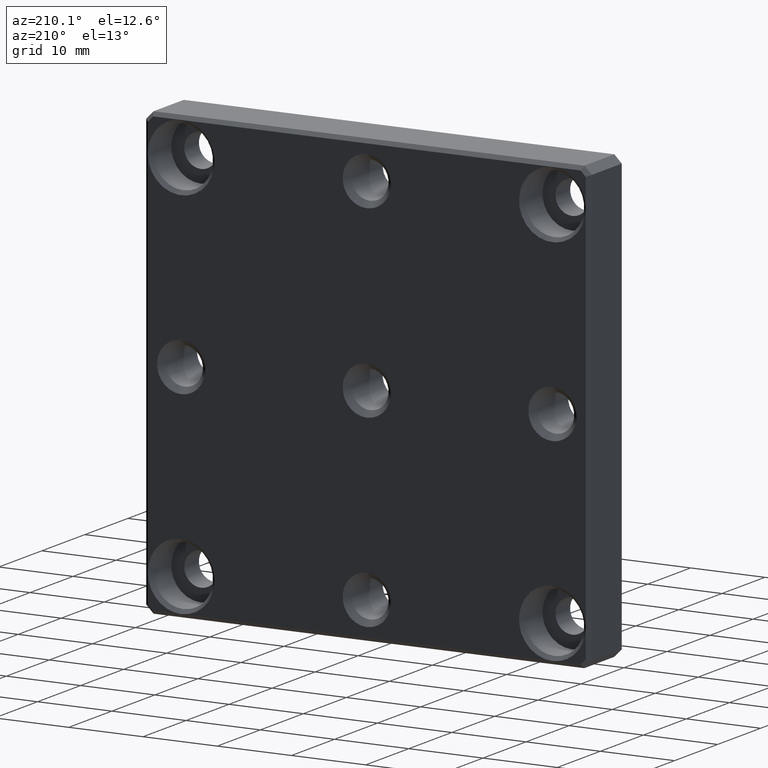
[diagram: clean part render]
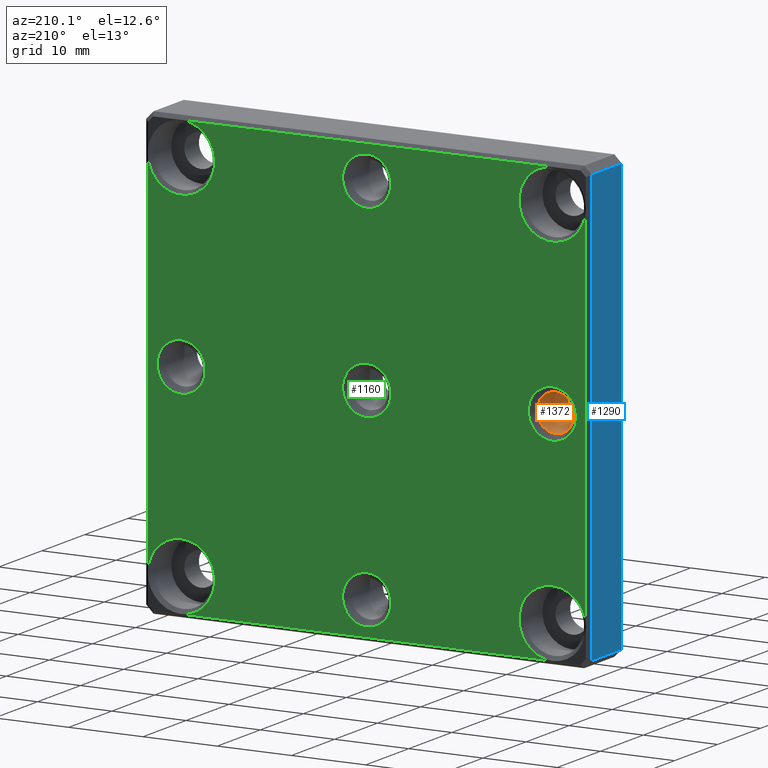
[diagram: same view with three faces highlighted in distinct colors, each labeled with its STEP entity id]
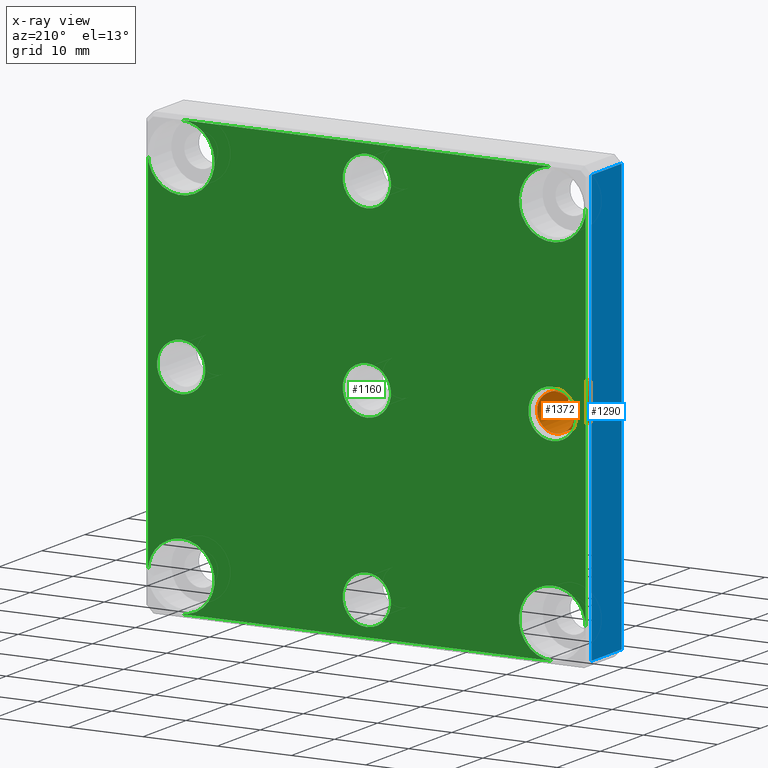
[diagram: x-ray of the same camera — body ghosted, the three highlighted faces saturated]
A machine part, auxiliary view with three faces highlighted in distinct colors.
The next image is the same camera in x-ray (body ghosted, the three faces saturated) — at least one of them is partly hidden behind the body in this view.
Their STEP definitions:

[orange] entity #1372 — the highlighted cylindrical surface (bore or boss wall) has radius 2.5 mm, axis along (-0, 1, -0).
#68 = EDGE_CURVE ( 'NONE', #406, #406, #732, .T. ) ;
#91 = CARTESIAN_POINT ( 'NONE',  ( -25.00000000000000000, 7.249999999999999112, 2.499999999999998668 ) ) ;
#177 = CYLINDRICAL_SURFACE ( 'NONE', #710, 2.499999999999998668 ) ;
#184 = DIRECTION ( 'NONE',  ( 0.000000000000000000, 0.000000000000000000, 1.000000000000000000 ) ) ;
#369 = AXIS2_PLACEMENT_3D ( 'NONE', #1207, #1305, #1081 ) ;
#406 = VERTEX_POINT ( 'NONE', #91 ) ;
#513 = CARTESIAN_POINT ( 'NONE',  ( -25.00000000000000000, 8.000000000000000000, 0.000000000000000000 ) ) ;
#542 = FACE_OUTER_BOUND ( 'NONE', #689, .T. ) ;
#622 = FACE_OUTER_BOUND ( 'NONE', #958, .T. ) ;
#626 = CARTESIAN_POINT ( 'NONE',  ( -25.00000000000000000, 7.249999999999999112, 0.000000000000000000 ) ) ;
#689 = EDGE_LOOP ( 'NONE', ( #1103 ) ) ;
#696 = VERTEX_POINT ( 'NONE', #1269 ) ;
#710 = AXIS2_PLACEMENT_3D ( 'NONE', #513, #1240, #184 ) ;
#732 = CIRCLE ( 'NONE', #1000, 2.499999999999998668 ) ;
#784 = CIRCLE ( 'NONE', #369, 2.499999999999998668 ) ;
#831 = EDGE_CURVE ( 'NONE', #696, #696, #784, .T. ) ;
#838 = DIRECTION ( 'NONE',  ( 0.000000000000000000, 0.000000000000000000, 1.000000000000000000 ) ) ;
#958 = EDGE_LOOP ( 'NONE', ( #1486 ) ) ;
#1000 = AXIS2_PLACEMENT_3D ( 'NONE', #626, #1314, #838 ) ;
#1081 = DIRECTION ( 'NONE',  ( 0.000000000000000000, 0.000000000000000000, 1.000000000000000000 ) ) ;
#1103 = ORIENTED_EDGE ( 'NONE', *, *, #68, .T. ) ;
#1207 = CARTESIAN_POINT ( 'NONE',  ( -25.00000000000000000, 0.000000000000000000, 0.000000000000000000 ) ) ;
#1240 = DIRECTION ( 'NONE',  ( -0.000000000000000000, 1.000000000000000000, -0.000000000000000000 ) ) ;
#1269 = CARTESIAN_POINT ( 'NONE',  ( -25.00000000000000000, 0.000000000000000000, 2.499999999999998668 ) ) ;
#1305 = DIRECTION ( 'NONE',  ( -0.000000000000000000, 1.000000000000000000, -0.000000000000000000 ) ) ;
#1314 = DIRECTION ( 'NONE',  ( -0.000000000000000000, 1.000000000000000000, -0.000000000000000000 ) ) ;
#1372 = ADVANCED_FACE ( 'NONE', ( #622, #542 ), #177, .F. ) ;
#1486 = ORIENTED_EDGE ( 'NONE', *, *, #831, .F. ) ;

[blue] entity #1290 — the highlighted planar face has unit normal (1, 0, -0).
#29 = VERTEX_POINT ( 'NONE', #707 ) ;
#48 = CARTESIAN_POINT ( 'NONE',  ( -30.00000000000000711, 7.499999999999992895, -28.99999999999999289 ) ) ;
#67 = EDGE_CURVE ( 'NONE', #29, #444, #845, .T. ) ;
#140 = CARTESIAN_POINT ( 'NONE',  ( -30.00000000000000000, 8.000000000000000000, 29.00000000000000355 ) ) ;
#186 = CARTESIAN_POINT ( 'NONE',  ( -30.00000000000000711, 8.000000000000000000, -28.99999999999999289 ) ) ;
#237 = VECTOR ( 'NONE', #1425, 1000.000000000000000 ) ;
#253 = DIRECTION ( 'NONE',  ( 1.000000000000000000, 0.000000000000000000, -1.196361017915039486E-16 ) ) ;
#299 = LINE ( 'NONE', #186, #440 ) ;
#440 = VECTOR ( 'NONE', #1250, 1000.000000000000000 ) ;
#444 = VERTEX_POINT ( 'NONE', #461 ) ;
#446 = CARTESIAN_POINT ( 'NONE',  ( -30.00000000000000000, 0.5000000000000073275, 29.00000000000000355 ) ) ;
#455 = EDGE_LOOP ( 'NONE', ( #1011, #770, #867, #1482 ) ) ;
#457 = EDGE_CURVE ( 'NONE', #1239, #1515, #1026, .T. ) ;
#461 = CARTESIAN_POINT ( 'NONE',  ( -30.00000000000000711, 7.499999999999992895, -28.99999999999999289 ) ) ;
#597 = EDGE_CURVE ( 'NONE', #29, #1515, #982, .T. ) ;
#705 = DIRECTION ( 'NONE',  ( 1.196361017915039486E-16, 0.000000000000000000, 1.000000000000000000 ) ) ;
#707 = CARTESIAN_POINT ( 'NONE',  ( -30.00000000000000000, 7.499999999999992895, 29.00000000000000355 ) ) ;
#729 = FACE_OUTER_BOUND ( 'NONE', #455, .T. ) ;
#770 = ORIENTED_EDGE ( 'NONE', *, *, #457, .T. ) ;
#845 = LINE ( 'NONE', #48, #237 ) ;
#860 = CARTESIAN_POINT ( 'NONE',  ( -30.00000000000000711, 8.000000000000000000, -28.99999999999999289 ) ) ;
#867 = ORIENTED_EDGE ( 'NONE', *, *, #597, .F. ) ;
#968 = DIRECTION ( 'NONE',  ( -0.000000000000000000, -1.000000000000000000, -0.000000000000000000 ) ) ;
#982 = LINE ( 'NONE', #140, #1333 ) ;
#989 = CARTESIAN_POINT ( 'NONE',  ( -30.00000000000000000, 0.5000000000000073275, 29.00000000000000355 ) ) ;
#1011 = ORIENTED_EDGE ( 'NONE', *, *, #1065, .T. ) ;
#1026 = LINE ( 'NONE', #446, #1033 ) ;
#1033 = VECTOR ( 'NONE', #705, 1000.000000000000000 ) ;
#1065 = EDGE_CURVE ( 'NONE', #444, #1239, #299, .T. ) ;
#1195 = DIRECTION ( 'NONE',  ( -1.196361017915039486E-16, 0.000000000000000000, -1.000000000000000000 ) ) ;
#1239 = VERTEX_POINT ( 'NONE', #1310 ) ;
#1250 = DIRECTION ( 'NONE',  ( -0.000000000000000000, -1.000000000000000000, -0.000000000000000000 ) ) ;
#1290 = ADVANCED_FACE ( 'NONE', ( #729 ), #1428, .F. ) ;
#1310 = CARTESIAN_POINT ( 'NONE',  ( -30.00000000000000711, 0.5000000000000073275, -28.99999999999999289 ) ) ;
#1333 = VECTOR ( 'NONE', #968, 1000.000000000000000 ) ;
#1425 = DIRECTION ( 'NONE',  ( -1.196361017915039486E-16, 0.000000000000000000, -1.000000000000000000 ) ) ;
#1428 = PLANE ( 'NONE',  #1519 ) ;
#1482 = ORIENTED_EDGE ( 'NONE', *, *, #67, .T. ) ;
#1515 = VERTEX_POINT ( 'NONE', #989 ) ;
#1519 = AXIS2_PLACEMENT_3D ( 'NONE', #860, #253, #1195 ) ;

[green] entity #1160 — the highlighted planar face has unit normal (0, -1, 0).
#7 = FACE_OUTER_BOUND ( 'NONE', #1124, .T. ) ;
#12 = ORIENTED_EDGE ( 'NONE', *, *, #853, .T. ) ;
#33 = CARTESIAN_POINT ( 'NONE',  ( -29.50000000000000355, 8.000000000000000000, 3.529265002849366742E-15 ) ) ;
#52 = CIRCLE ( 'NONE', #295, 4.500000000000000888 ) ;
#61 = LINE ( 'NONE', #69, #858 ) ;
#69 = CARTESIAN_POINT ( 'NONE',  ( -3.529265002849365165E-15, 8.000000000000000000, -29.49999999999999645 ) ) ;
#93 = DIRECTION ( 'NONE',  ( 0.000000000000000000, -1.000000000000000000, 0.000000000000000000 ) ) ;
#109 = CARTESIAN_POINT ( 'NONE',  ( 0.000000000000000000, 8.000000000000000000, 3.250000000000000444 ) ) ;
#111 = FACE_BOUND ( 'NONE', #1114, .T. ) ;
#123 = CARTESIAN_POINT ( 'NONE',  ( 24.99999999999999645, 8.000000000000000000, -29.50000000000000000 ) ) ;
#127 = VERTEX_POINT ( 'NONE', #368 ) ;
#146 = CARTESIAN_POINT ( 'NONE',  ( 3.469446951953614189E-15, 8.000000000000000000, 25.00000000000000000 ) ) ;
#187 = DIRECTION ( 'NONE',  ( 0.000000000000000000, 0.000000000000000000, 1.000000000000000000 ) ) ;
#196 = CIRCLE ( 'NONE', #1426, 3.249999999999999556 ) ;
#200 = CIRCLE ( 'NONE', #1053, 3.249999999999999556 ) ;
#202 = DIRECTION ( 'NONE',  ( -0.000000000000000000, 1.000000000000000000, -0.000000000000000000 ) ) ;
#211 = VERTEX_POINT ( 'NONE', #435 ) ;
#213 = EDGE_CURVE ( 'NONE', #227, #227, #1514, .T. ) ;
#227 = VERTEX_POINT ( 'NONE', #109 ) ;
#229 = DIRECTION ( 'NONE',  ( 0.000000000000000000, -0.000000000000000000, -1.000000000000000000 ) ) ;
#249 = EDGE_LOOP ( 'NONE', ( #1503 ) ) ;
#276 = CIRCLE ( 'NONE', #837, 3.249999999999999556 ) ;
#279 = DIRECTION ( 'NONE',  ( 0.000000000000000000, 0.000000000000000000, 1.000000000000000000 ) ) ;
#295 = AXIS2_PLACEMENT_3D ( 'NONE', #931, #1393, #947 ) ;
#296 = LINE ( 'NONE', #1226, #1085 ) ;
#300 = CIRCLE ( 'NONE', #1254, 3.249999999999999556 ) ;
#301 = DIRECTION ( 'NONE',  ( 0.000000000000000000, 0.000000000000000000, 1.000000000000000000 ) ) ;
#307 = CARTESIAN_POINT ( 'NONE',  ( 25.00000000000000355, 8.000000000000000000, 29.50000000000000711 ) ) ;
#327 = EDGE_CURVE ( 'NONE', #971, #1001, #497, .T. ) ;
#332 = VERTEX_POINT ( 'NONE', #307 ) ;
#340 = ORIENTED_EDGE ( 'NONE', *, *, #711, .F. ) ;
#355 = DIRECTION ( 'NONE',  ( 0.000000000000000000, 0.000000000000000000, 1.000000000000000000 ) ) ;
#368 = CARTESIAN_POINT ( 'NONE',  ( -24.99999999999999645, 8.000000000000000000, 29.50000000000000711 ) ) ;
#373 = EDGE_CURVE ( 'NONE', #1509, #1509, #300, .T. ) ;
#402 = DIRECTION ( 'NONE',  ( 1.196361017915039486E-16, 0.000000000000000000, 1.000000000000000000 ) ) ;
#413 = DIRECTION ( 'NONE',  ( 0.000000000000000000, 0.000000000000000000, 1.000000000000000000 ) ) ;
#418 = AXIS2_PLACEMENT_3D ( 'NONE', #1204, #1062, #482 ) ;
#427 = AXIS2_PLACEMENT_3D ( 'NONE', #759, #637, #413 ) ;
#428 = DIRECTION ( 'NONE',  ( -1.000000000000000000, 0.000000000000000000, 1.196361017915039239E-16 ) ) ;
#435 = CARTESIAN_POINT ( 'NONE',  ( 25.00000000000000000, 8.000000000000000000, 3.249999999999999556 ) ) ;
#442 = EDGE_LOOP ( 'NONE', ( #1234 ) ) ;
#449 = ORIENTED_EDGE ( 'NONE', *, *, #1491, .F. ) ;
#460 = AXIS2_PLACEMENT_3D ( 'NONE', #1490, #202, #187 ) ;
#465 = CARTESIAN_POINT ( 'NONE',  ( -3.469446951953614189E-15, 8.000000000000000000, -21.75000000000000355 ) ) ;
#482 = DIRECTION ( 'NONE',  ( 0.000000000000000000, 0.000000000000000000, 1.000000000000000000 ) ) ;
#497 = CIRCLE ( 'NONE', #522, 4.500000000000000888 ) ;
#522 = AXIS2_PLACEMENT_3D ( 'NONE', #1364, #762, #301 ) ;
#534 = ORIENTED_EDGE ( 'NONE', *, *, #373, .F. ) ;
#538 = CARTESIAN_POINT ( 'NONE',  ( -29.50000000000000000, 8.000000000000000000, 25.00000000000000000 ) ) ;
#551 = EDGE_CURVE ( 'NONE', #816, #816, #276, .T. ) ;
#616 = CARTESIAN_POINT ( 'NONE',  ( -25.00000000000000000, 8.000000000000000000, 0.000000000000000000 ) ) ;
#637 = DIRECTION ( 'NONE',  ( -0.000000000000000000, 1.000000000000000000, -0.000000000000000000 ) ) ;
#645 = CARTESIAN_POINT ( 'NONE',  ( 29.50000000000000711, 8.000000000000000000, -7.058530005698735063E-15 ) ) ;
#660 = EDGE_LOOP ( 'NONE', ( #534 ) ) ;
#711 = EDGE_CURVE ( 'NONE', #1510, #332, #52, .T. ) ;
#722 = DIRECTION ( 'NONE',  ( -0.000000000000000000, 1.000000000000000000, -0.000000000000000000 ) ) ;
#735 = ORIENTED_EDGE ( 'NONE', *, *, #1344, .F. ) ;
#741 = CARTESIAN_POINT ( 'NONE',  ( 25.00000000000000000, 8.000000000000000000, 0.000000000000000000 ) ) ;
#749 = LINE ( 'NONE', #33, #984 ) ;
#759 = CARTESIAN_POINT ( 'NONE',  ( -24.99999999999999645, 8.000000000000000000, 25.00000000000000000 ) ) ;
#762 = DIRECTION ( 'NONE',  ( -0.000000000000000000, 1.000000000000000000, -0.000000000000000000 ) ) ;
#771 = DIRECTION ( 'NONE',  ( 1.000000000000000000, 0.000000000000000000, 0.000000000000000000 ) ) ;
#782 = CIRCLE ( 'NONE', #418, 4.500000000000000888 ) ;
#783 = ORIENTED_EDGE ( 'NONE', *, *, #1382, .T. ) ;
#788 = CARTESIAN_POINT ( 'NONE',  ( 29.50000000000000000, 8.000000000000000000, -25.00000000000000000 ) ) ;
#803 = FACE_BOUND ( 'NONE', #660, .T. ) ;
#816 = VERTEX_POINT ( 'NONE', #1396 ) ;
#821 = EDGE_CURVE ( 'NONE', #211, #211, #200, .T. ) ;
#829 = ORIENTED_EDGE ( 'NONE', *, *, #1414, .T. ) ;
#837 = AXIS2_PLACEMENT_3D ( 'NONE', #616, #1293, #1190 ) ;
#853 = EDGE_CURVE ( 'NONE', #971, #1040, #749, .T. ) ;
#858 = VECTOR ( 'NONE', #428, 1000.000000000000000 ) ;
#869 = LINE ( 'NONE', #645, #908 ) ;
#908 = VECTOR ( 'NONE', #1110, 1000.000000000000000 ) ;
#931 = CARTESIAN_POINT ( 'NONE',  ( 25.00000000000000355, 8.000000000000000000, 25.00000000000000000 ) ) ;
#947 = DIRECTION ( 'NONE',  ( 0.000000000000000000, 0.000000000000000000, 1.000000000000000000 ) ) ;
#971 = VERTEX_POINT ( 'NONE', #1440 ) ;
#984 = VECTOR ( 'NONE', #402, 1000.000000000000000 ) ;
#1001 = VERTEX_POINT ( 'NONE', #1242 ) ;
#1024 = AXIS2_PLACEMENT_3D ( 'NONE', #1285, #93, #229 ) ;
#1032 = CARTESIAN_POINT ( 'NONE',  ( 3.469446951953614189E-15, 8.000000000000000000, 28.25000000000000000 ) ) ;
#1040 = VERTEX_POINT ( 'NONE', #538 ) ;
#1053 = AXIS2_PLACEMENT_3D ( 'NONE', #741, #1431, #279 ) ;
#1054 = FACE_BOUND ( 'NONE', #442, .T. ) ;
#1062 = DIRECTION ( 'NONE',  ( -0.000000000000000000, 1.000000000000000000, -0.000000000000000000 ) ) ;
#1085 = VECTOR ( 'NONE', #771, 1000.000000000000000 ) ;
#1088 = ORIENTED_EDGE ( 'NONE', *, *, #327, .F. ) ;
#1095 = VERTEX_POINT ( 'NONE', #788 ) ;
#1110 = DIRECTION ( 'NONE',  ( -2.392722035830078972E-16, 0.000000000000000000, -1.000000000000000000 ) ) ;
#1114 = EDGE_LOOP ( 'NONE', ( #1434 ) ) ;
#1120 = ORIENTED_EDGE ( 'NONE', *, *, #1336, .F. ) ;
#1124 = EDGE_LOOP ( 'NONE', ( #449, #1132, #340, #829, #735, #783, #1088, #12 ) ) ;
#1132 = ORIENTED_EDGE ( 'NONE', *, *, #1459, .T. ) ;
#1160 = ADVANCED_FACE ( 'NONE', ( #1054, #803, #1258, #111, #1504, #7 ), #1162, .F. ) ;
#1162 = PLANE ( 'NONE',  #1024 ) ;
#1190 = DIRECTION ( 'NONE',  ( 0.000000000000000000, 0.000000000000000000, 1.000000000000000000 ) ) ;
#1204 = CARTESIAN_POINT ( 'NONE',  ( 24.99999999999999645, 8.000000000000000000, -25.00000000000000000 ) ) ;
#1224 = VERTEX_POINT ( 'NONE', #123 ) ;
#1226 = CARTESIAN_POINT ( 'NONE',  ( 0.000000000000000000, 8.000000000000000000, 29.50000000000000711 ) ) ;
#1234 = ORIENTED_EDGE ( 'NONE', *, *, #213, .F. ) ;
#1242 = CARTESIAN_POINT ( 'NONE',  ( -25.00000000000000355, 8.000000000000000000, -29.49999999999999289 ) ) ;
#1254 = AXIS2_PLACEMENT_3D ( 'NONE', #1416, #1279, #1392 ) ;
#1258 = FACE_BOUND ( 'NONE', #1422, .T. ) ;
#1279 = DIRECTION ( 'NONE',  ( -0.000000000000000000, 1.000000000000000000, -0.000000000000000000 ) ) ;
#1281 = CIRCLE ( 'NONE', #427, 4.500000000000000888 ) ;
#1285 = CARTESIAN_POINT ( 'NONE',  ( 0.000000000000000000, 8.000000000000000000, 0.000000000000000000 ) ) ;
#1293 = DIRECTION ( 'NONE',  ( -0.000000000000000000, 1.000000000000000000, -0.000000000000000000 ) ) ;
#1336 = EDGE_CURVE ( 'NONE', #1516, #1516, #196, .T. ) ;
#1344 = EDGE_CURVE ( 'NONE', #1224, #1095, #782, .T. ) ;
#1364 = CARTESIAN_POINT ( 'NONE',  ( -25.00000000000000355, 8.000000000000000000, -25.00000000000000000 ) ) ;
#1367 = CARTESIAN_POINT ( 'NONE',  ( 29.50000000000001066, 8.000000000000000000, 25.00000000000000000 ) ) ;
#1382 = EDGE_CURVE ( 'NONE', #1224, #1001, #61, .T. ) ;
#1392 = DIRECTION ( 'NONE',  ( 0.000000000000000000, 0.000000000000000000, 1.000000000000000000 ) ) ;
#1393 = DIRECTION ( 'NONE',  ( -0.000000000000000000, 1.000000000000000000, -0.000000000000000000 ) ) ;
#1396 = CARTESIAN_POINT ( 'NONE',  ( -25.00000000000000000, 8.000000000000000000, 3.249999999999999556 ) ) ;
#1414 = EDGE_CURVE ( 'NONE', #1510, #1095, #869, .T. ) ;
#1416 = CARTESIAN_POINT ( 'NONE',  ( -3.469446951953614189E-15, 8.000000000000000000, -25.00000000000000000 ) ) ;
#1422 = EDGE_LOOP ( 'NONE', ( #1120 ) ) ;
#1426 = AXIS2_PLACEMENT_3D ( 'NONE', #146, #722, #355 ) ;
#1431 = DIRECTION ( 'NONE',  ( -0.000000000000000000, 1.000000000000000000, -0.000000000000000000 ) ) ;
#1434 = ORIENTED_EDGE ( 'NONE', *, *, #821, .F. ) ;
#1440 = CARTESIAN_POINT ( 'NONE',  ( -29.50000000000000711, 8.000000000000000000, -25.00000000000000000 ) ) ;
#1459 = EDGE_CURVE ( 'NONE', #127, #332, #296, .T. ) ;
#1490 = CARTESIAN_POINT ( 'NONE',  ( 0.000000000000000000, 8.000000000000000000, 0.000000000000000000 ) ) ;
#1491 = EDGE_CURVE ( 'NONE', #127, #1040, #1281, .T. ) ;
#1503 = ORIENTED_EDGE ( 'NONE', *, *, #551, .F. ) ;
#1504 = FACE_BOUND ( 'NONE', #249, .T. ) ;
#1509 = VERTEX_POINT ( 'NONE', #465 ) ;
#1510 = VERTEX_POINT ( 'NONE', #1367 ) ;
#1514 = CIRCLE ( 'NONE', #460, 3.250000000000000444 ) ;
#1516 = VERTEX_POINT ( 'NONE', #1032 ) ;